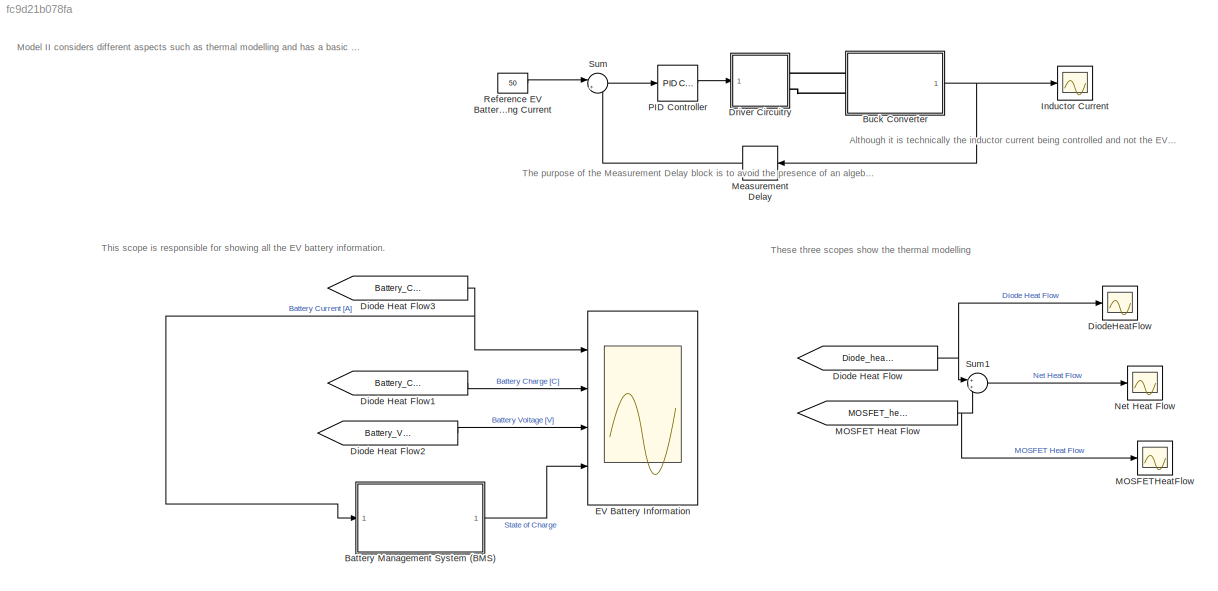
MODEL slx_fc9d21b078fa
KIND model
CONFIG AbsTol = auto
CONFIG EnableMultiTasking = off
CONFIG FixedStep = auto
CONFIG MaxStep = auto
CONFIG MinStep = auto
CONFIG RelTol = 1e-3
CONFIG SampleTimeConstraint = Unconstrained
CONFIG SolverName = VariableStepAuto
CONFIG StartTime = 0.0
CONFIG StopTime = 0.5
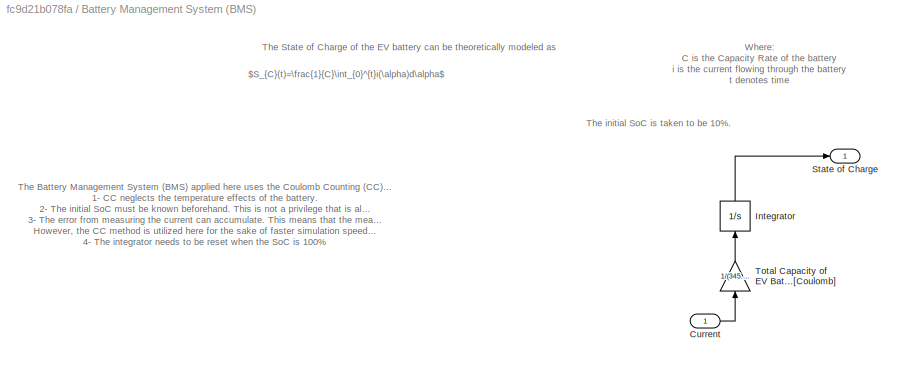
BLOCK [SubSystem] Battery Management System (BMS)
  NameLocation = left
  Ports = [1, 1]
  RequestExecContextInheritance = off
BLOCK [Inport] Battery Management System (BMS)/Current
BLOCK [Integrator] Battery Management System (BMS)/Integrator
  InitialCondition = 0.1
  NameLocation = right
  Ports = [1, 1]
BLOCK [Outport] Battery Management System (BMS)/State of Charge
BLOCK [Gain] Battery Management System (BMS)/Total Capacity of EV Battery [Coulomb]
  Gain = 1/(345.53*3600)
  NameLocation = right
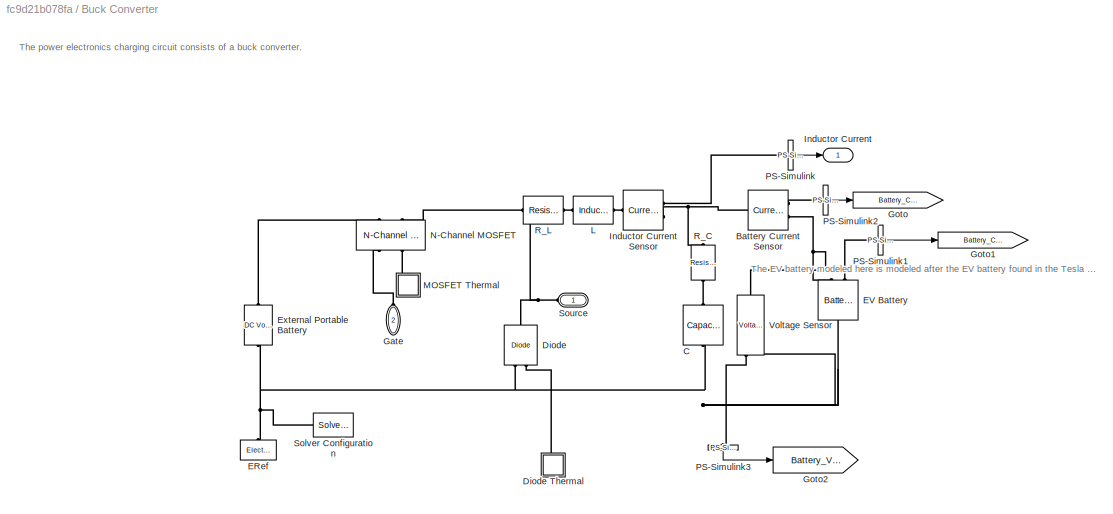
BLOCK [SubSystem] Buck Converter
  NameLocation = top
  Ports = [0, 1, 0, 0, 0, 2]
  RequestExecContextInheritance = off
BLOCK [Reference] Buck Converter/ C  REF=fl_lib/Electrical/Electrical Elements/Capacitor
  NameLocation = left
  Ports = [0, 0, 0, 0, 0, 1, 1]
  SourceBlock = fl_lib/Electrical/Electrical Elements/Capacitor
  SourceProductBaseCode = PW,SS,VE
  SourceType = Capacitor
BLOCK [Reference] Buck Converter/Battery Current Sensor  REF=fl_lib/Electrical/Electrical Sensors/Current Sensor
  Ports = [0, 0, 0, 0, 0, 1, 2]
  SourceBlock = fl_lib/Electrical/Electrical Sensors/Current Sensor
  SourceProductBaseCode = PW,SS,VE
  SourceType = Current Sensor
BLOCK [Reference] Buck Converter/Diode  REF=ee_lib/Semiconductors &
Converters/Diode
  NameLocation = right
  Ports = [0, 0, 0, 0, 0, 2, 1]
  SourceBlock = ee_lib/Semiconductors &\nConverters/Diode
  SourceProductBaseCode = PS
  SourceType = Diode
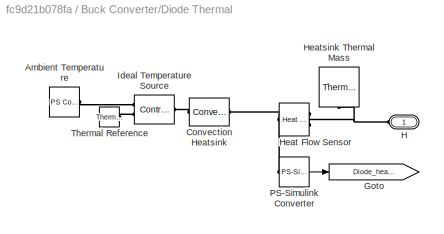
BLOCK [SubSystem] Buck Converter/Diode Thermal
  NameLocation = right
  Ports = [0, 0, 0, 0, 0, 1]
  RequestExecContextInheritance = off
BLOCK [Reference] Buck Converter/Diode Thermal/Ambient Temperature  REF=fl_lib/Physical Signals/Sources/PS Constant
  Ports = [0, 0, 0, 0, 0, 0, 1]
  SourceBlock = fl_lib/Physical Signals/Sources/PS Constant
  SourceProductBaseCode = PW,SS,VE
  SourceType = PS Constant
BLOCK [Reference] Buck Converter/Diode Thermal/Convection Heatsink  REF=fl_lib/Thermal/Thermal Elements/Convective Heat
Transfer
  Ports = [0, 0, 0, 0, 0, 1, 1]
  SourceBlock = fl_lib/Thermal/Thermal Elements/Convective Heat\nTransfer
  SourceProductBaseCode = PW,SS,VE
  SourceType = Convective Heat\nTransfer
BLOCK [Goto] Buck Converter/Diode Thermal/Goto
  GotoTag = Diode_heat_flow
  TagVisibility = global
BLOCK [PMIOPort] Buck Converter/Diode Thermal/H
  Side = Left
BLOCK [Reference] Buck Converter/Diode Thermal/Heat Flow Sensor  REF=fl_lib/Thermal/Thermal Sensors/Heat Flow Rate
Sensor
  NameLocation = top
  Ports = [0, 0, 0, 0, 0, 1, 2]
  SourceBlock = fl_lib/Thermal/Thermal Sensors/Heat Flow Rate\nSensor
  SourceProductBaseCode = PW,SS,VE
  SourceType = Heat Flow Rate\nSensor
BLOCK [Reference] Buck Converter/Diode Thermal/Heatsink Thermal Mass  REF=fl_lib/Thermal/Thermal Elements/Thermal Mass
  NameLocation = right
  Ports = [0, 0, 0, 0, 0, 1]
  SourceBlock = fl_lib/Thermal/Thermal Elements/Thermal Mass
  SourceProductBaseCode = PW,SS,VE
  SourceType = Thermal Mass
BLOCK [Reference] Buck Converter/Diode Thermal/Ideal Temperature Source  REF=fl_lib/Thermal/Thermal Sources/Controlled
Temperature Source
  NameLocation = top
  Ports = [0, 0, 0, 0, 0, 1, 2]
  SourceBlock = fl_lib/Thermal/Thermal Sources/Controlled\nTemperature Source
  SourceProductBaseCode = PW,SS,VE
  SourceType = Controlled\nTemperature Source
BLOCK [Reference] Buck Converter/Diode Thermal/PS-Simulink Converter  REF=nesl_utility/PS-Simulink
Converter
  Ports = [0, 1, 0, 0, 0, 1]
  SourceBlock = nesl_utility/PS-Simulink\nConverter
  SourceProductBaseCode = SS,PW,VE
  SourceType = PS-Simulink\nConverter
BLOCK [Reference] Buck Converter/Diode Thermal/Thermal Reference  REF=fl_lib/Thermal/Thermal Elements/Thermal Reference
  Ports = [0, 0, 0, 0, 0, 1]
  SourceBlock = fl_lib/Thermal/Thermal Elements/Thermal Reference
  SourceProductBaseCode = PW,SS,VE
  SourceType = Thermal Reference
BLOCK [Reference] Buck Converter/ERef  REF=fl_lib/Electrical/Electrical Elements/Electrical Reference
  NameLocation = right
  Ports = [0, 0, 0, 0, 0, 1]
  SourceBlock = fl_lib/Electrical/Electrical Elements/Electrical Reference
  SourceProductBaseCode = PW,SS,VE
  SourceType = Electrical Reference
BLOCK [Reference] Buck Converter/EV Battery  REF=ee_lib/Sources/Battery
  NameLocation = right
  Ports = [0, 0, 0, 0, 0, 2, 1]
  SourceBlock = ee_lib/Sources/Battery
  SourceProductBaseCode = PS
  SourceType = Battery
BLOCK [Reference] Buck Converter/External Portable Battery  REF=fl_lib/Electrical/Electrical Sources/DC Voltage Source
  AttributesFormatString = %<v0> %<v0_unit>
  NameLocation = left
  Ports = [0, 0, 0, 0, 0, 1, 1]
  SourceBlock = fl_lib/Electrical/Electrical Sources/DC Voltage Source
  SourceProductBaseCode = PW,SS,VE
  SourceType = DC Voltage Source
BLOCK [PMIOPort] Buck Converter/Gate
  NameLocation = left
  Port = 2
  Side = Left
BLOCK [Goto] Buck Converter/Goto
  GotoTag = Battery_Current
  TagVisibility = global
BLOCK [Goto] Buck Converter/Goto1
  GotoTag = Battery_Charge
  TagVisibility = global
BLOCK [Goto] Buck Converter/Goto2
  GotoTag = Battery_Voltage
  TagVisibility = global
BLOCK [Outport] Buck Converter/Inductor Current
  NameLocation = top
  VectorParamsAs1DForOutWhenUnconnected = off
BLOCK [Reference] Buck Converter/Inductor Current Sensor  REF=fl_lib/Electrical/Electrical Sensors/Current Sensor
  Ports = [0, 0, 0, 0, 0, 1, 2]
  SourceBlock = fl_lib/Electrical/Electrical Sensors/Current Sensor
  SourceProductBaseCode = PW,SS,VE
  SourceType = Current Sensor
BLOCK [Reference] Buck Converter/L  REF=fl_lib/Electrical/Electrical Elements/Inductor
  NameLocation = top
  Ports = [0, 0, 0, 0, 0, 1, 1]
  SourceBlock = fl_lib/Electrical/Electrical Elements/Inductor
  SourceProductBaseCode = PW,SS,VE
  SourceType = Inductor
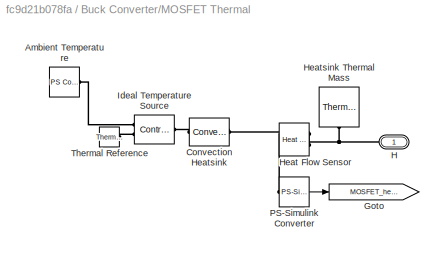
BLOCK [SubSystem] Buck Converter/MOSFET Thermal
  NameLocation = right
  Ports = [0, 0, 0, 0, 0, 1]
  RequestExecContextInheritance = off
  Tag = PublishSubsystem
BLOCK [Reference] Buck Converter/MOSFET Thermal/Ambient Temperature  REF=fl_lib/Physical Signals/Sources/PS Constant
  Ports = [0, 0, 0, 0, 0, 0, 1]
  SourceBlock = fl_lib/Physical Signals/Sources/PS Constant
  SourceProductBaseCode = PW,SS,VE
  SourceType = PS Constant
BLOCK [Reference] Buck Converter/MOSFET Thermal/Convection Heatsink  REF=fl_lib/Thermal/Thermal Elements/Convective Heat
Transfer
  Ports = [0, 0, 0, 0, 0, 1, 1]
  SourceBlock = fl_lib/Thermal/Thermal Elements/Convective Heat\nTransfer
  SourceProductBaseCode = PW,SS,VE
  SourceType = Convective Heat\nTransfer
BLOCK [Goto] Buck Converter/MOSFET Thermal/Goto
  GotoTag = MOSFET_heat_flow
  TagVisibility = global
BLOCK [PMIOPort] Buck Converter/MOSFET Thermal/H
  Side = Left
BLOCK [Reference] Buck Converter/MOSFET Thermal/Heat Flow Sensor  REF=fl_lib/Thermal/Thermal Sensors/Heat Flow Rate
Sensor
  NameLocation = top
  Ports = [0, 0, 0, 0, 0, 1, 2]
  SourceBlock = fl_lib/Thermal/Thermal Sensors/Heat Flow Rate\nSensor
  SourceProductBaseCode = PW,SS,VE
  SourceType = Heat Flow Rate\nSensor
BLOCK [Reference] Buck Converter/MOSFET Thermal/Heatsink Thermal Mass  REF=fl_lib/Thermal/Thermal Elements/Thermal Mass
  NameLocation = right
  Ports = [0, 0, 0, 0, 0, 1]
  SourceBlock = fl_lib/Thermal/Thermal Elements/Thermal Mass
  SourceProductBaseCode = PW,SS,VE
  SourceType = Thermal Mass
BLOCK [Reference] Buck Converter/MOSFET Thermal/Ideal Temperature Source  REF=fl_lib/Thermal/Thermal Sources/Controlled
Temperature Source
  NameLocation = top
  Ports = [0, 0, 0, 0, 0, 1, 2]
  SourceBlock = fl_lib/Thermal/Thermal Sources/Controlled\nTemperature Source
  SourceProductBaseCode = PW,SS,VE
  SourceType = Controlled\nTemperature Source
BLOCK [Reference] Buck Converter/MOSFET Thermal/PS-Simulink Converter  REF=nesl_utility/PS-Simulink
Converter
  Ports = [0, 1, 0, 0, 0, 1]
  SourceBlock = nesl_utility/PS-Simulink\nConverter
  SourceProductBaseCode = SS,PW,VE
  SourceType = PS-Simulink\nConverter
BLOCK [Reference] Buck Converter/MOSFET Thermal/Thermal Reference  REF=fl_lib/Thermal/Thermal Elements/Thermal Reference
  Ports = [0, 0, 0, 0, 0, 1]
  SourceBlock = fl_lib/Thermal/Thermal Elements/Thermal Reference
  SourceProductBaseCode = PW,SS,VE
  SourceType = Thermal Reference
BLOCK [Reference] Buck Converter/N-Channel MOSFET  REF=ee_lib/Semiconductors &
Converters/N-Channel MOSFET
  NameLocation = right
  Ports = [0, 0, 0, 0, 0, 2, 2]
  SourceBlock = ee_lib/Semiconductors &\nConverters/N-Channel MOSFET
  SourceProductBaseCode = PS
  SourceType = N-Channel MOSFET
BLOCK [Reference] Buck Converter/PS-Simulink  REF=nesl_utility/PS-Simulink
Converter
  NameLocation = top
  Ports = [0, 1, 0, 0, 0, 1]
  SourceBlock = nesl_utility/PS-Simulink\nConverter
  SourceProductBaseCode = SS,PW,VE
  SourceType = PS-Simulink\nConverter
BLOCK [Reference] Buck Converter/PS-Simulink1  REF=nesl_utility/PS-Simulink
Converter
  NameLocation = top
  Ports = [0, 1, 0, 0, 0, 1]
  SourceBlock = nesl_utility/PS-Simulink\nConverter
  SourceProductBaseCode = SS,PW,VE
  SourceType = PS-Simulink\nConverter
BLOCK [Reference] Buck Converter/PS-Simulink2  REF=nesl_utility/PS-Simulink
Converter
  NameLocation = top
  Ports = [0, 1, 0, 0, 0, 1]
  SourceBlock = nesl_utility/PS-Simulink\nConverter
  SourceProductBaseCode = SS,PW,VE
  SourceType = PS-Simulink\nConverter
BLOCK [Reference] Buck Converter/PS-Simulink3  REF=nesl_utility/PS-Simulink
Converter
  NameLocation = right
  Ports = [0, 1, 0, 0, 0, 1]
  SourceBlock = nesl_utility/PS-Simulink\nConverter
  SourceProductBaseCode = SS,PW,VE
  SourceType = PS-Simulink\nConverter
BLOCK [Reference] Buck Converter/R_C  REF=fl_lib/Electrical/Electrical Elements/Resistor
  NameLocation = right
  Ports = [0, 0, 0, 0, 0, 1, 1]
  SourceBlock = fl_lib/Electrical/Electrical Elements/Resistor
  SourceProductBaseCode = PW,SS,VE
  SourceType = Resistor
BLOCK [Reference] Buck Converter/R_L  REF=fl_lib/Electrical/Electrical Elements/Resistor
  Ports = [0, 0, 0, 0, 0, 1, 1]
  SourceBlock = fl_lib/Electrical/Electrical Elements/Resistor
  SourceProductBaseCode = PW,SS,VE
  SourceType = Resistor
BLOCK [Reference] Buck Converter/Solver Configuration  REF=nesl_utility/Solver
Configuration
  Ports = [0, 0, 0, 0, 0, 0, 1]
  SourceBlock = nesl_utility/Solver\nConfiguration
  SourceProductBaseCode = SS,PW,VE
  SourceType = Solver\nConfiguration
BLOCK [PMIOPort] Buck Converter/Source
  Side = Left
BLOCK [Reference] Buck Converter/Voltage Sensor  REF=fl_lib/Electrical/Electrical Sensors/Voltage Sensor
  NameLocation = right
  Ports = [0, 0, 0, 0, 0, 1, 2]
  SourceBlock = fl_lib/Electrical/Electrical Sensors/Voltage Sensor
  SourceProductBaseCode = PW,SS,VE
  SourceType = Voltage Sensor
BLOCK [From] Diode Heat Flow
  GotoTag = Diode_heat_flow
  TagVisibility = global
BLOCK [From] Diode Heat Flow1
  GotoTag = Battery_Charge
  TagVisibility = global
BLOCK [From] Diode Heat Flow2
  GotoTag = Battery_Voltage
  TagVisibility = global
BLOCK [From] Diode Heat Flow3
  GotoTag = Battery_Current
  TagVisibility = global
BLOCK [Scope] DiodeHeatFlow
  Floating = off
  NumInputPorts = 1
  Ports = [1]
  ScopeSpecificationString = Simulink.scopes.TimeScopeBlockCfg('CurrentConfiguration', extmgr.ConfigurationSet(extmgr.Configuration('Core','General UI',true),extmgr.Configuration('Core','Source UI',true),extmgr.Configuration('Sources','WiredSimulink',true,'DataLoggingVariableName','ScopeData1','DataLoggingSaveFormat','Array','DataLoggingDecimation','1','DataLoggingDecimateData',true),extmgr.Configuration('Visuals','Time Domai...<+1772ch>
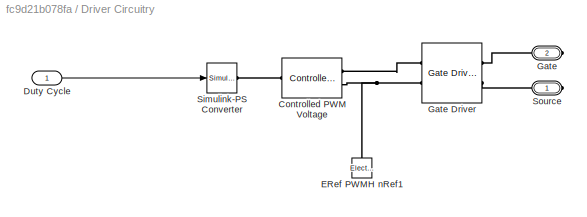
BLOCK [SubSystem] Driver Circuitry
  NameLocation = top
  Ports = [1, 0, 0, 0, 0, 0, 2]
  RequestExecContextInheritance = off
BLOCK [Reference] Driver Circuitry/Controlled PWM Voltage  REF=ee_lib/Integrated Circuits/Controlled PWM
Voltage
  Ports = [0, 0, 0, 0, 0, 1, 2]
  SourceBlock = ee_lib/Integrated Circuits/Controlled PWM\nVoltage
  SourceProductBaseCode = PS
  SourceType = Controlled PWM\nVoltage
BLOCK [Inport] Driver Circuitry/Duty Cycle
BLOCK [Reference] Driver Circuitry/ERef PWMH nRef1  REF=fl_lib/Electrical/Electrical Elements/Electrical Reference
  NameLocation = right
  Ports = [0, 0, 0, 0, 0, 1]
  SourceBlock = fl_lib/Electrical/Electrical Elements/Electrical Reference
  SourceProductBaseCode = PW,SS,VE
  SourceType = Electrical Reference
BLOCK [PMIOPort] Driver Circuitry/Gate
  Port = 2
  Side = Right
BLOCK [Reference] Driver Circuitry/Gate Driver  REF=ee_lib/Semiconductors &
Converters/Gate Driver
  Ports = [0, 0, 0, 0, 0, 2, 2]
  SourceBlock = ee_lib/Semiconductors &\nConverters/Gate Driver
  SourceProductBaseCode = PS
  SourceType = Gate Driver
BLOCK [Reference] Driver Circuitry/Simulink-PS Converter  REF=nesl_utility/Simulink-PS
Converter
  Ports = [1, 0, 0, 0, 0, 0, 1]
  SourceBlock = nesl_utility/Simulink-PS\nConverter
  SourceProductBaseCode = SS,PW,VE
  SourceType = Simulink-PS\nConverter
BLOCK [PMIOPort] Driver Circuitry/Source
  Side = Right
BLOCK [Scope] EV Battery Information
  Floating = off
  NumInputPorts = 4
  Ports = [4]
  ScopeSpecificationString = Simulink.scopes.TimeScopeBlockCfg('CurrentConfiguration', extmgr.ConfigurationSet(extmgr.Configuration('Core','General UI',true),extmgr.Configuration('Core','Source UI',true),extmgr.Configuration('Sources','WiredSimulink',true,'DataLoggingVariableName','ScopeData3','DataLoggingSaveFormat','Array','DataLoggingDecimation','1','DataLoggingDecimateData',true),extmgr.Configuration('Visuals','Time Domai...<+3887ch>
BLOCK [Scope] Inductor Current 
  Floating = off
  NumInputPorts = 1
  Ports = [1]
  ScopeSpecificationString = Simulink.scopes.TimeScopeBlockCfg('CurrentConfiguration', extmgr.ConfigurationSet(extmgr.Configuration('Core','General UI',true),extmgr.Configuration('Core','Source UI',true),extmgr.Configuration('Sources','WiredSimulink',true,'DataLoggingVariableName','ScopeData4','DataLoggingSaveFormat','Array','DataLoggingDecimation','1','DataLoggingDecimateData',true),extmgr.Configuration('Visuals','Time Domai...<+1716ch>
BLOCK [From] MOSFET Heat Flow
  GotoTag = MOSFET_heat_flow
  TagVisibility = global
BLOCK [Scope] MOSFETHeatFlow
  Floating = off
  NumInputPorts = 1
  Ports = [1]
  ScopeSpecificationString = Simulink.scopes.TimeScopeBlockCfg('CurrentConfiguration', extmgr.ConfigurationSet(extmgr.Configuration('Core','General UI',true),extmgr.Configuration('Core','Source UI',true),extmgr.Configuration('Sources','WiredSimulink',true,'DataLoggingVariableName','ScopeData5','DataLoggingSaveFormat','Array','DataLoggingDecimation','1','DataLoggingDecimateData',true),extmgr.Configuration('Visuals','Time Domai...<+1780ch>
BLOCK [Delay] Measurement Delay
  DelayLength = 1
  InitialCondition = 0
  InputPortMap = u0
  NameLocation = top
  Ports = [1, 1]
BLOCK [Scope] Net Heat Flow
  Floating = off
  NumInputPorts = 1
  Ports = [1]
  ScopeSpecificationString = Simulink.scopes.TimeScopeBlockCfg('CurrentConfiguration', extmgr.ConfigurationSet(extmgr.Configuration('Core','General UI',true),extmgr.Configuration('Core','Source UI',true),extmgr.Configuration('Sources','WiredSimulink',true,'DataLoggingSaveFormat','Array','DataLoggingDecimation','1','DataLoggingDecimateData',true),extmgr.Configuration('Visuals','Time Domain',true,'SerializedDisplays',{struct('M...<+1712ch>
BLOCK [Reference] PID Controller  REF=slpidlib/PID Controller
  Ports = [1, 1]
  SourceBlock = slpidlib/PID Controller
  SourceProductBaseCode = SL
  SourceType = PID 1dof
BLOCK [Constant] Reference EV Battery Charging Current
  NameLocation = top
  Value = 50
BLOCK [Sum] Sum
  InputSameDT = on
  Inputs = |+-
  NameLocation = top
  OutDataTypeStr = Inherit: Same as first input
  Ports = [2, 1]
  SaturateOnIntegerOverflow = on
BLOCK [Sum] Sum1
  Ports = [2, 1]
ANNOTATION (root): Model II considers different aspects such as thermal modelling and has a basic custom battery management system alongside the main electrical characteristics. The EV battery is treated as one simple large cell for the sake of simulation speed.
ANNOTATION (root): The purpose of the Measurement Delay block is to avoid the presence of an algebraic loop for faster simulation speed. To learn more about algebraic loops, visit this link .
ANNOTATION (root): Although it is technically the inductor current being controlled and not the EV battery current, these two currents are identical as the average current flowing through the capacitor over one switching cycle is zero.
ANNOTATION (root): These three scopes show the thermal modelling
ANNOTATION (root): This scope is responsible for showing all the EV battery information.
ANNOTATION Battery Management System (BMS): Where: C is the Capacity Rate of the battery i is the current flowing through the battery t denotes time
ANNOTATION Battery Management System (BMS): The Battery Management System (BMS) applied here uses the Coulomb Counting (CC) method. Essentially, the above equation is directly applied to approximate the state of charge (SoC). However, this BMS model is often considered be too simple for most mainstream applications. Some of the disadvantages of CC include: 1- CC neglects the temperature effects of the battery. 2- The initial SoC must be kno...<+449ch>
ANNOTATION Battery Management System (BMS): $S_{C}(t)=\frac{1}{C}\int_{0}^{t}i(\alpha)d\alpha$
ANNOTATION Battery Management System (BMS): The State of Charge of the EV battery can be theoretically modeled as
ANNOTATION Battery Management System (BMS): The initial SoC is taken to be 10%.
ANNOTATION Buck Converter: The EV battery modeled here is modeled after the EV battery found in the Tesla Model S . The Tesla Model S consists of 7104 NCR18650B separate battery cells connected in a various series/parallel networks. The cell layout of the Tesla Model S is described in this link .
ANNOTATION Buck Converter: The power electronics charging circuit consists of a buck converter.
LINE Battery Management System (BMS)/Current:1 -> Battery Management System (BMS)/Total Capacity of EV Battery [Coulomb]:1
LINE Battery Management System (BMS)/Integrator:1 -> Battery Management System (BMS)/State of Charge:1
LINE Battery Management System (BMS)/Total Capacity of EV Battery [Coulomb]:1 -> Battery Management System (BMS)/Integrator:1
LINE Battery Management System (BMS):1 -> EV Battery Information:4
LINE Buck Converter/Diode Thermal/PS-Simulink Converter:1 -> Buck Converter/Diode Thermal/Goto:1
LINE Buck Converter/MOSFET Thermal/PS-Simulink Converter:1 -> Buck Converter/MOSFET Thermal/Goto:1
LINE Buck Converter/PS-Simulink1:1 -> Buck Converter/Goto1:1
LINE Buck Converter/PS-Simulink2:1 -> Buck Converter/Goto:1
LINE Buck Converter/PS-Simulink3:1 -> Buck Converter/Goto2:1
LINE Buck Converter/PS-Simulink:1 -> Buck Converter/Inductor Current:1
NET Buck Converter:1 -> Inductor Current :1, Measurement Delay:1
LINE Diode Heat Flow1:1 -> EV Battery Information:2
LINE Diode Heat Flow2:1 -> EV Battery Information:3
NET Diode Heat Flow3:1 -> Battery Management System (BMS):1, EV Battery Information:1
NET Diode Heat Flow:1 -> DiodeHeatFlow:1, Sum1:1
LINE Driver Circuitry/Duty Cycle:1 -> Driver Circuitry/Simulink-PS Converter:1
NET MOSFET Heat Flow:1 -> MOSFETHeatFlow:1, Sum1:2
LINE Measurement Delay:1 -> Sum:2
LINE PID Controller:1 -> Driver Circuitry:1
LINE Reference EV Battery Charging Current:1 -> Sum:1
LINE Sum1:1 -> Net Heat Flow:1
LINE Sum:1 -> PID Controller:1
PLINE Buck Converter/ C:LConn1 -- Buck Converter/R_C:RConn1
PNET net1: Buck Converter/ C:RConn1 -- Buck Converter/Diode:LConn1 -- Buck Converter/ERef:LConn1 -- Buck Converter/EV Battery:RConn1 -- Buck Converter/External Portable Battery:RConn1 -- Buck Converter/Solver Configuration:RConn1 -- Buck Converter/Voltage Sensor:RConn2
PNET net2: Buck Converter/Battery Current Sensor:LConn1 -- Buck Converter/Inductor Current Sensor:RConn2 -- Buck Converter/R_C:LConn1
PLINE Buck Converter/Battery Current Sensor:RConn1 -- Buck Converter/PS-Simulink2:LConn1
PNET net3: Buck Converter/Battery Current Sensor:RConn2 -- Buck Converter/EV Battery:LConn1 -- Buck Converter/Voltage Sensor:LConn1
PLINE Buck Converter/Diode Thermal/Ambient Temperature:RConn1 -- Buck Converter/Diode Thermal/Ideal Temperature Source:RConn1
PLINE Buck Converter/Diode Thermal/Convection Heatsink:LConn1 -- Buck Converter/Diode Thermal/Heat Flow Sensor:RConn2
PLINE Buck Converter/Diode Thermal/Convection Heatsink:RConn1 -- Buck Converter/Diode Thermal/Ideal Temperature Source:LConn1
PNET net4: Buck Converter/Diode Thermal/H:RConn1 -- Buck Converter/Diode Thermal/Heat Flow Sensor:LConn1 -- Buck Converter/Diode Thermal/Heatsink Thermal Mass:LConn1
PLINE Buck Converter/Diode Thermal/Heat Flow Sensor:RConn1 -- Buck Converter/Diode Thermal/PS-Simulink Converter:LConn1
PLINE Buck Converter/Diode Thermal/Ideal Temperature Source:RConn2 -- Buck Converter/Diode Thermal/Thermal Reference:LConn1
PLINE Buck Converter/Diode Thermal:LConn1 -- Buck Converter/Diode:LConn2
PNET net5: Buck Converter/Diode:RConn1 -- Buck Converter/N-Channel MOSFET:RConn2 -- Buck Converter/R_L:RConn1 -- Buck Converter/Source:RConn1
PLINE Buck Converter/EV Battery:LConn2 -- Buck Converter/PS-Simulink1:LConn1
PLINE Buck Converter/External Portable Battery:LConn1 -- Buck Converter/N-Channel MOSFET:RConn1
PLINE Buck Converter/Gate:RConn1 -- Buck Converter/N-Channel MOSFET:LConn1
PLINE Buck Converter/Inductor Current Sensor:LConn1 -- Buck Converter/L:LConn1
PLINE Buck Converter/Inductor Current Sensor:RConn1 -- Buck Converter/PS-Simulink:LConn1
PLINE Buck Converter/L:RConn1 -- Buck Converter/R_L:LConn1
PLINE Buck Converter/MOSFET Thermal/Ambient Temperature:RConn1 -- Buck Converter/MOSFET Thermal/Ideal Temperature Source:RConn1
PLINE Buck Converter/MOSFET Thermal/Convection Heatsink:LConn1 -- Buck Converter/MOSFET Thermal/Heat Flow Sensor:RConn2
PLINE Buck Converter/MOSFET Thermal/Convection Heatsink:RConn1 -- Buck Converter/MOSFET Thermal/Ideal Temperature Source:LConn1
PNET net6: Buck Converter/MOSFET Thermal/H:RConn1 -- Buck Converter/MOSFET Thermal/Heat Flow Sensor:LConn1 -- Buck Converter/MOSFET Thermal/Heatsink Thermal Mass:LConn1
PLINE Buck Converter/MOSFET Thermal/Heat Flow Sensor:RConn1 -- Buck Converter/MOSFET Thermal/PS-Simulink Converter:LConn1
PLINE Buck Converter/MOSFET Thermal/Ideal Temperature Source:RConn2 -- Buck Converter/MOSFET Thermal/Thermal Reference:LConn1
PLINE Buck Converter/MOSFET Thermal:LConn1 -- Buck Converter/N-Channel MOSFET:LConn2
PLINE Buck Converter/PS-Simulink3:LConn1 -- Buck Converter/Voltage Sensor:RConn1
PLINE Buck Converter:LConn1 -- Driver Circuitry:RConn1
PLINE Buck Converter:LConn2 -- Driver Circuitry:RConn2
PLINE Driver Circuitry/Controlled PWM Voltage:LConn1 -- Driver Circuitry/Simulink-PS Converter:RConn1
PLINE Driver Circuitry/Controlled PWM Voltage:RConn1 -- Driver Circuitry/Gate Driver:LConn1
PNET net7: Driver Circuitry/Controlled PWM Voltage:RConn2 -- Driver Circuitry/ERef PWMH nRef1:LConn1 -- Driver Circuitry/Gate Driver:LConn2
PLINE Driver Circuitry/Gate Driver:RConn1 -- Driver Circuitry/Gate:RConn1
PLINE Driver Circuitry/Gate Driver:RConn2 -- Driver Circuitry/Source:RConn1
note: NET lines group one-source signal fan-out (src -> all destinations, sorted); 1:1 wires keep LINE; PNET lines group multi-terminal physical nets as a canonical sorted terminal list (undirected conserving connections); 2-terminal nets keep the pairwise PLINE form
